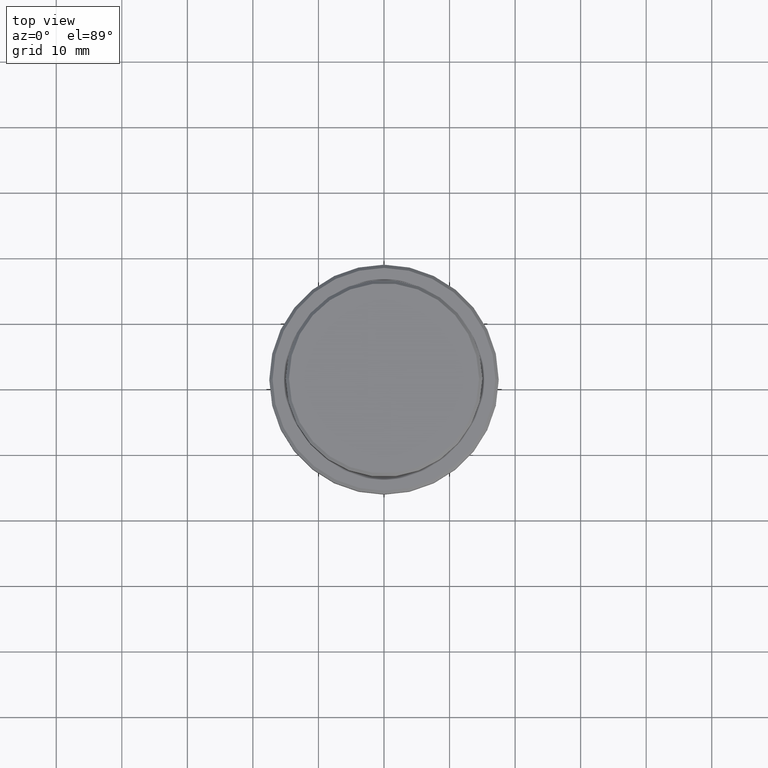
[diagram: clean part render]
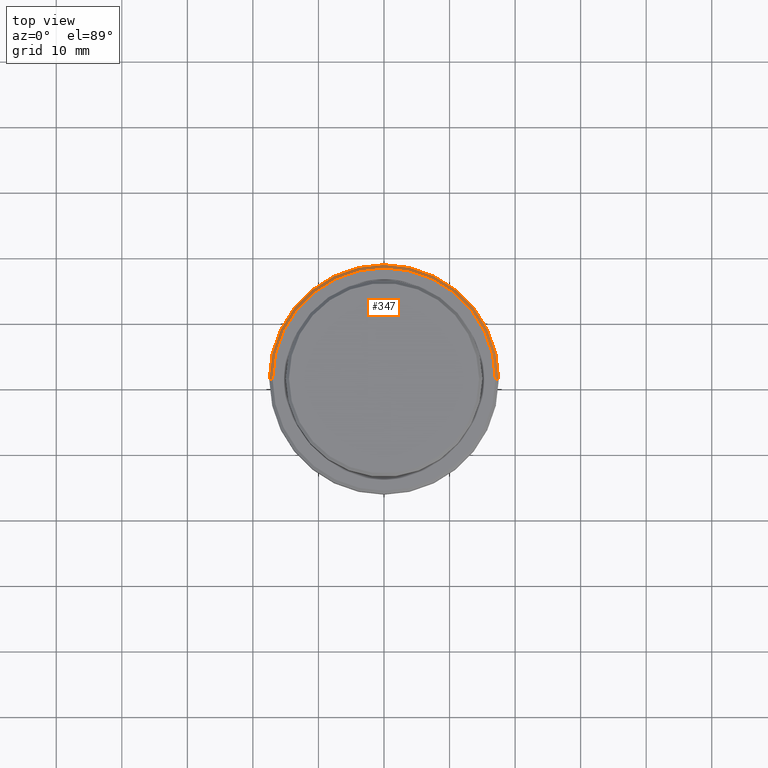
[diagram: same view with one face highlighted and labeled with its STEP entity id]
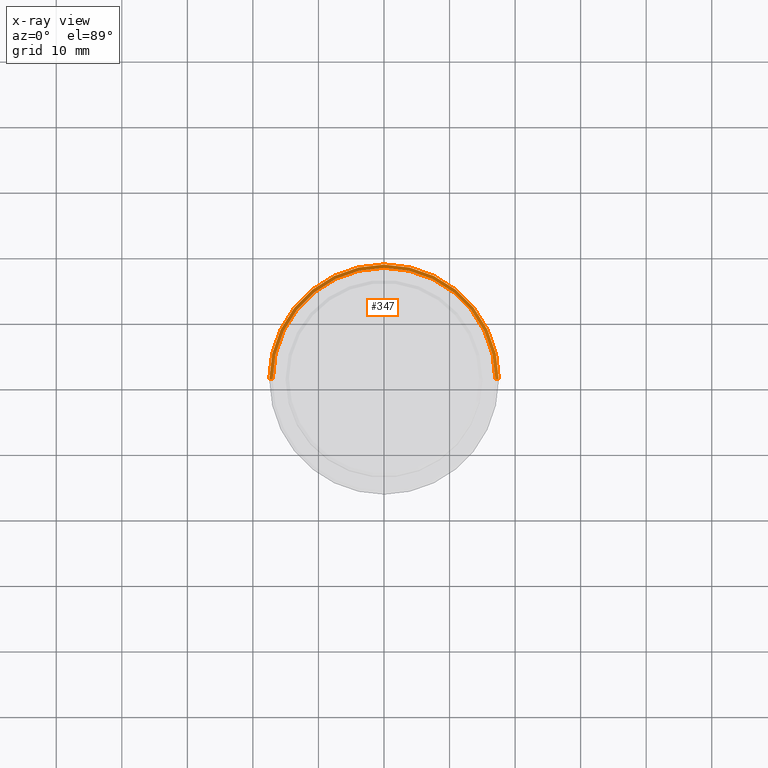
[diagram: x-ray of the same camera — body ghosted, the highlighted face saturated]
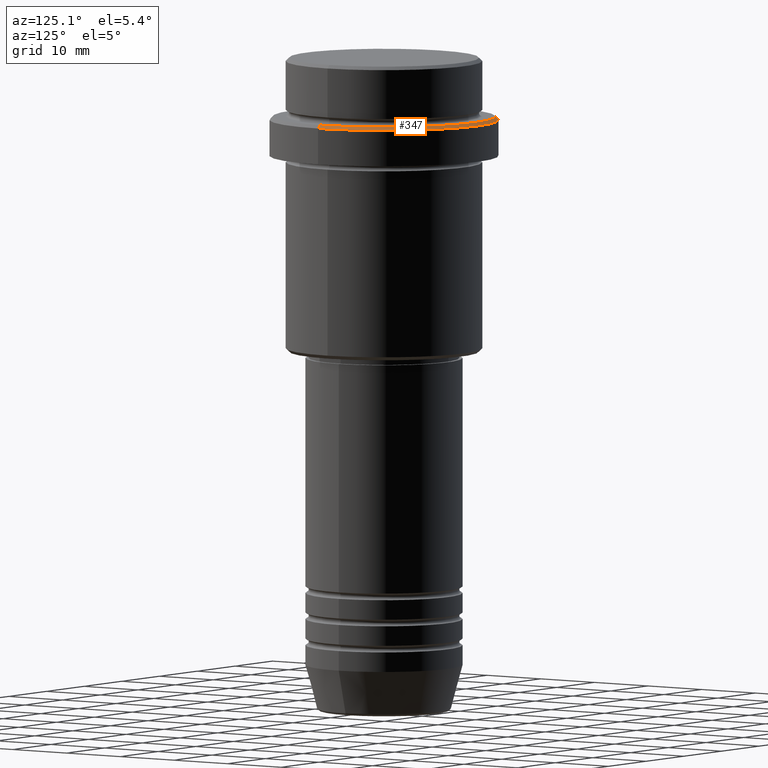
[diagram: same view with one face highlighted and labeled with its STEP entity id]
A machine part, top view. The second image highlights one B-rep face of the part: STEP entity #347.
The next image is the same camera in x-ray: the body ghosted, the highlighted face saturated — about 0% of this face is hidden behind the body in this view.
A second angle (auxiliary view) of the same face is appended — the face is thin or edge-on in the first view.
In plain terms, the highlighted conical surface has half-angle 45 deg.
Its self-contained STEP definition (entity closure, byte-faithful):
#33 = DIRECTION ( 'NONE',  ( 0.000000000000000000, 0.000000000000000000, -1.000000000000000000 ) ) ;
#137 = DIRECTION ( 'NONE',  ( -0.7071067811865474617, 0.000000000000000000, -0.7071067811865474617 ) ) ;
#153 = VERTEX_POINT ( 'NONE', #556 ) ;
#181 = VECTOR ( 'NONE', #620, 1000.000000000000114 ) ;
#184 = EDGE_CURVE ( 'NONE', #1138, #935, #288, .T. ) ;
#198 = CARTESIAN_POINT ( 'NONE',  ( 16.99999999999997513, 2.081899558550497519E-15, -9.000000000000000000 ) ) ;
#216 = CONICAL_SURFACE ( 'NONE', #1014, 16.99999999999997513, 0.7853981633974482790 ) ;
#242 = DIRECTION ( 'NONE',  ( -1.000000000000000000, 0.000000000000000000, 0.000000000000000000 ) ) ;
#288 = CIRCLE ( 'NONE', #1129, 16.99999999999997513 ) ;
#299 = CARTESIAN_POINT ( 'NONE',  ( 0.000000000000000000, 0.000000000000000000, -9.500000000000026645 ) ) ;
#347 = ADVANCED_FACE ( 'NONE', ( #1013 ), #216, .T. ) ;
#359 = VECTOR ( 'NONE', #137, 1000.000000000000114 ) ;
#379 = EDGE_CURVE ( 'NONE', #935, #153, #1121, .T. ) ;
#404 = EDGE_LOOP ( 'NONE', ( #662, #1313, #429, #1210 ) ) ;
#429 = ORIENTED_EDGE ( 'NONE', *, *, #755, .F. ) ;
#479 = CARTESIAN_POINT ( 'NONE',  ( 17.50000000000000000, 0.000000000000000000, -9.500000000000026645 ) ) ;
#510 = DIRECTION ( 'NONE',  ( 1.000000000000000000, 0.000000000000000000, 0.000000000000000000 ) ) ;
#515 = VERTEX_POINT ( 'NONE', #479 ) ;
#556 = CARTESIAN_POINT ( 'NONE',  ( -17.50000000000000000, 2.143131898507868248E-15, -9.500000000000026645 ) ) ;
#568 = CARTESIAN_POINT ( 'NONE',  ( -16.99999999999997513, 0.000000000000000000, -9.000000000000000000 ) ) ;
#620 = DIRECTION ( 'NONE',  ( 0.7071067811865474617, 8.659560562354932858E-17, -0.7071067811865474617 ) ) ;
#662 = ORIENTED_EDGE ( 'NONE', *, *, #184, .F. ) ;
#711 = DIRECTION ( 'NONE',  ( -0.000000000000000000, -0.000000000000000000, 1.000000000000000000 ) ) ;
#755 = EDGE_CURVE ( 'NONE', #153, #515, #1123, .T. ) ;
#768 = AXIS2_PLACEMENT_3D ( 'NONE', #299, #1169, #510 ) ;
#823 = CARTESIAN_POINT ( 'NONE',  ( 0.000000000000000000, 0.000000000000000000, -9.000000000000000000 ) ) ;
#888 = CARTESIAN_POINT ( 'NONE',  ( 0.000000000000000000, 0.000000000000000000, -9.000000000000000000 ) ) ;
#912 = DIRECTION ( 'NONE',  ( 1.000000000000000000, 0.000000000000000000, 0.000000000000000000 ) ) ;
#935 = VERTEX_POINT ( 'NONE', #1200 ) ;
#963 = LINE ( 'NONE', #198, #181 ) ;
#968 = CARTESIAN_POINT ( 'NONE',  ( 16.99999999999997513, 2.112515728529182883E-15, -9.000000000000000000 ) ) ;
#1013 = FACE_OUTER_BOUND ( 'NONE', #404, .T. ) ;
#1014 = AXIS2_PLACEMENT_3D ( 'NONE', #888, #33, #242 ) ;
#1111 = EDGE_CURVE ( 'NONE', #1138, #515, #963, .T. ) ;
#1121 = LINE ( 'NONE', #568, #359 ) ;
#1123 = CIRCLE ( 'NONE', #768, 17.50000000000000000 ) ;
#1129 = AXIS2_PLACEMENT_3D ( 'NONE', #823, #711, #912 ) ;
#1138 = VERTEX_POINT ( 'NONE', #968 ) ;
#1169 = DIRECTION ( 'NONE',  ( 0.000000000000000000, 0.000000000000000000, -1.000000000000000000 ) ) ;
#1200 = CARTESIAN_POINT ( 'NONE',  ( -16.99999999999997513, 0.000000000000000000, -9.000000000000000000 ) ) ;
#1210 = ORIENTED_EDGE ( 'NONE', *, *, #379, .F. ) ;
#1313 = ORIENTED_EDGE ( 'NONE', *, *, #1111, .T. ) ;